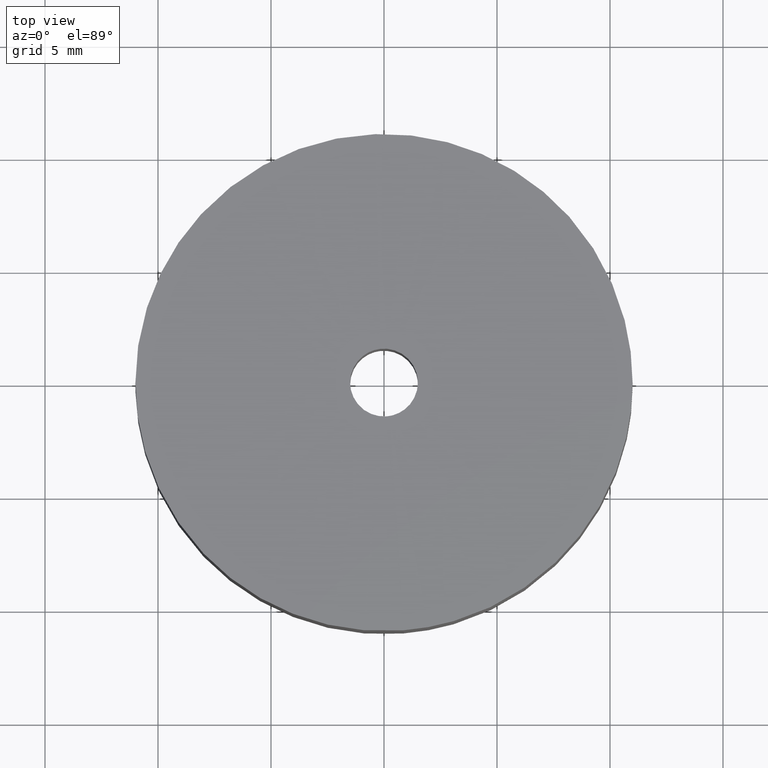
[diagram: clean part render]
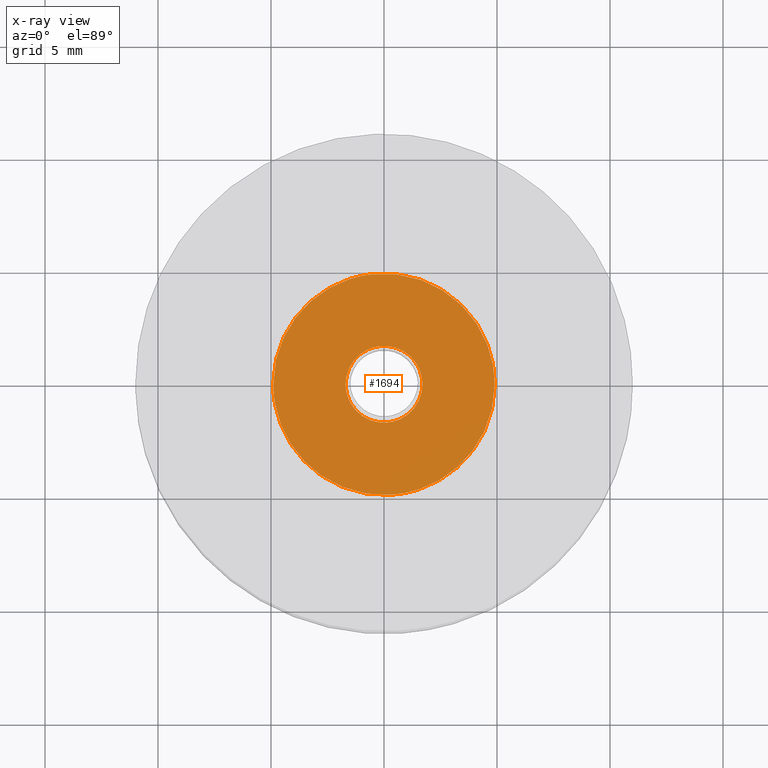
[diagram: x-ray — body ghosted, one internal face saturated and labeled with its STEP entity id]
A machine part, top view, then the same camera in x-ray: the body is ghosted and one INTERNAL B-rep face — a face not visible from any outside direction — is saturated and labeled: STEP entity #1694.
In plain terms, the highlighted face is a freeform B-spline surface patch.
Its self-contained STEP definition (entity closure, byte-faithful):
#1138=CARTESIAN_POINT('',(-0.200658198949654,1.688116194814291,4.299999999999999));
#1139=VERTEX_POINT('',#1138);
#1145=CARTESIAN_POINT('',(1.700000000000000,0.0,4.300000000000000));
#1146=VERTEX_POINT('',#1145);
#1147=CARTESIAN_POINT('',(-0.200658198949654,1.688116194814290,4.299999999999999));
#1148=CARTESIAN_POINT('',(-0.100681003441763,1.700000000000000,4.300000000000000));
#1149=CARTESIAN_POINT('',(0.0,1.700000000000000,4.300000000000000));
#1150=CARTESIAN_POINT('',(1.700000000000000,1.700000000000000,4.300000000000001));
#1151=CARTESIAN_POINT('',(1.700000000000000,0.0,4.300000000000000));
#1159=(BOUNDED_CURVE()B_SPLINE_CURVE(2,(#1147,#1148,#1149,#1150,#1151),.UNSPECIFIED.,.F.,.U.)B_SPLINE_CURVE_WITH_KNOTS((3,2,3),(0.229562473509004,0.250000000000000,0.500000000000000),.UNSPECIFIED.)CURVE()GEOMETRIC_REPRESENTATION_ITEM()RATIONAL_B_SPLINE_CURVE((0.956026754174870,0.976055948325868,1.0,0.707106781186548,1.0))REPRESENTATION_ITEM(''));
#1160=EDGE_CURVE('',#1139,#1146,#1159,.T.);
#1162=CARTESIAN_POINT('',(0.103782517247881,-1.696829157314811,4.300000000000000));
#1163=VERTEX_POINT('',#1162);
#1164=CARTESIAN_POINT('',(1.700000000000000,0.0,4.300000000000000));
#1165=CARTESIAN_POINT('',(1.700000000000000,-1.599200313666744,4.300000000000000));
#1166=CARTESIAN_POINT('',(0.103782517247880,-1.696829157314812,4.300000000000000));
#1174=(BOUNDED_CURVE()B_SPLINE_CURVE(2,(#1164,#1165,#1166),.UNSPECIFIED.,.F.,.U.)B_SPLINE_CURVE_WITH_KNOTS((3,3),(0.500000000000000,0.739332962234113),.UNSPECIFIED.)CURVE()GEOMETRIC_REPRESENTATION_ITEM()RATIONAL_B_SPLINE_CURVE((1.0,0.719603993292368,0.976072041656367))REPRESENTATION_ITEM(''));
#1175=EDGE_CURVE('',#1146,#1163,#1174,.T.);
#1249=CARTESIAN_POINT('',(-1.700000000000000,0.0,4.300000000000000));
#1250=VERTEX_POINT('',#1249);
#1251=CARTESIAN_POINT('',(0.103782517247881,-1.696829157314811,4.300000000000000));
#1252=CARTESIAN_POINT('',(0.051939697646333,-1.700000000000000,4.300000000000000));
#1253=CARTESIAN_POINT('',(0.0,-1.700000000000000,4.300000000000000));
#1254=CARTESIAN_POINT('',(-1.700000000000000,-1.700000000000000,4.300000000000001));
#1255=CARTESIAN_POINT('',(-1.700000000000000,0.0,4.300000000000000));
#1263=(BOUNDED_CURVE()B_SPLINE_CURVE(2,(#1251,#1252,#1253,#1254,#1255),.UNSPECIFIED.,.F.,.U.)B_SPLINE_CURVE_WITH_KNOTS((3,2,3),(0.739332962234113,0.750000000000000,1.0),.UNSPECIFIED.)CURVE()GEOMETRIC_REPRESENTATION_ITEM()RATIONAL_B_SPLINE_CURVE((0.976072041656367,0.987502787894179,1.0,0.707106781186548,1.0))REPRESENTATION_ITEM(''));
#1264=EDGE_CURVE('',#1163,#1250,#1263,.T.);
#1266=CARTESIAN_POINT('',(-1.700000000000000,0.0,4.300000000000000));
#1267=CARTESIAN_POINT('',(-1.700000000000000,1.509896694057580,4.300000000000000));
#1268=CARTESIAN_POINT('',(-0.200658198949654,1.688116194814291,4.299999999999999));
#1276=(BOUNDED_CURVE()B_SPLINE_CURVE(2,(#1266,#1267,#1268),.UNSPECIFIED.,.F.,.U.)B_SPLINE_CURVE_WITH_KNOTS((3,3),(0.0,0.229562473509004),.UNSPECIFIED.)CURVE()GEOMETRIC_REPRESENTATION_ITEM()RATIONAL_B_SPLINE_CURVE((1.0,0.731050832860680,0.956026754174870))REPRESENTATION_ITEM(''));
#1277=EDGE_CURVE('',#1250,#1139,#1276,.T.);
#1309=CARTESIAN_POINT('',(-0.578361964243906,4.865747366878184,4.299999999999754));
#1310=VERTEX_POINT('',#1309);
#1311=CARTESIAN_POINT('',(4.900000000000000,0.0,4.300000000000000));
#1312=VERTEX_POINT('',#1311);
#1313=CARTESIAN_POINT('',(-0.578361964243906,4.865747366878184,4.299999999999754));
#1314=CARTESIAN_POINT('',(-0.290195262925594,4.899999999999999,4.300000000000000));
#1315=CARTESIAN_POINT('',(0.0,4.900000000000000,4.300000000000000));
#1316=CARTESIAN_POINT('',(4.899999999999999,4.899999999999999,4.300000000000000));
#1317=CARTESIAN_POINT('',(4.900000000000000,0.0,4.300000000000000));
#1325=(BOUNDED_CURVE()B_SPLINE_CURVE(2,(#1313,#1314,#1315,#1316,#1317),.UNSPECIFIED.,.F.,.U.)B_SPLINE_CURVE_WITH_KNOTS((3,2,3),(0.229562674467517,0.250000000000000,0.500000000000000),.UNSPECIFIED.)CURVE()GEOMETRIC_REPRESENTATION_ITEM()RATIONAL_B_SPLINE_CURVE((0.956027148062159,0.976056183763411,1.0,0.707106781186547,1.0))REPRESENTATION_ITEM(''));
#1326=EDGE_CURVE('',#1310,#1312,#1325,.T.);
#1367=CARTESIAN_POINT('',(0.299129869435250,-4.890860999982295,4.299999999999896));
#1368=VERTEX_POINT('',#1367);
#1374=CARTESIAN_POINT('',(4.900000000000000,0.0,4.300000000000000));
#1375=CARTESIAN_POINT('',(4.900000000000000,-4.609467257363676,4.300000000000000));
#1376=CARTESIAN_POINT('',(0.299129869435250,-4.890860999982295,4.299999999999896));
#1384=(BOUNDED_CURVE()B_SPLINE_CURVE(2,(#1374,#1375,#1376),.UNSPECIFIED.,.F.,.U.)B_SPLINE_CURVE_WITH_KNOTS((3,3),(0.500000000000000,0.739333243570307),.UNSPECIFIED.)CURVE()GEOMETRIC_REPRESENTATION_ITEM()RATIONAL_B_SPLINE_CURVE((1.0,0.719603663686515,0.976072644614125))REPRESENTATION_ITEM(''));
#1385=EDGE_CURVE('',#1312,#1368,#1384,.T.);
#1408=CARTESIAN_POINT('',(-4.900000000000000,0.0,4.300000000000000));
#1409=VERTEX_POINT('',#1408);
#1410=CARTESIAN_POINT('',(-4.900000000000000,0.0,4.300000000000000));
#1411=CARTESIAN_POINT('',(-4.899999999999999,4.352060388366241,4.300000000000000));
#1412=CARTESIAN_POINT('',(-0.578361964243906,4.865747366878184,4.299999999999754));
#1420=(BOUNDED_CURVE()B_SPLINE_CURVE(2,(#1410,#1411,#1412),.UNSPECIFIED.,.F.,.U.)B_SPLINE_CURVE_WITH_KNOTS((3,3),(0.0,0.229562674467517),.UNSPECIFIED.)CURVE()GEOMETRIC_REPRESENTATION_ITEM()RATIONAL_B_SPLINE_CURVE((1.0,0.731050597423136,0.956027148062159))REPRESENTATION_ITEM(''));
#1421=EDGE_CURVE('',#1409,#1310,#1420,.T.);
#1423=CARTESIAN_POINT('',(0.299129869435250,-4.890860999982295,4.299999999999896));
#1424=CARTESIAN_POINT('',(0.149704541841249,-4.900000000000000,4.300000000000000));
#1425=CARTESIAN_POINT('',(0.0,-4.900000000000000,4.300000000000000));
#1426=CARTESIAN_POINT('',(-4.899999999999999,-4.899999999999999,4.300000000000000));
#1427=CARTESIAN_POINT('',(-4.900000000000000,0.0,4.300000000000000));
#1435=(BOUNDED_CURVE()B_SPLINE_CURVE(2,(#1423,#1424,#1425,#1426,#1427),.UNSPECIFIED.,.F.,.U.)B_SPLINE_CURVE_WITH_KNOTS((3,2,3),(0.739333243570307,0.750000000000000,1.0),.UNSPECIFIED.)CURVE()GEOMETRIC_REPRESENTATION_ITEM()RATIONAL_B_SPLINE_CURVE((0.976072644614125,0.987503117500032,1.0,0.707106781186547,1.0))REPRESENTATION_ITEM(''));
#1436=EDGE_CURVE('',#1368,#1409,#1435,.T.);
#1677=CARTESIAN_POINT('',(-5.389510073001086,-5.389390995347224,4.300000000000000));
#1678=CARTESIAN_POINT('',(5.389510248238743,-5.389390995347224,4.300000000000000));
#1679=CARTESIAN_POINT('',(-5.389510073001086,5.389420873367511,4.300000000000000));
#1680=CARTESIAN_POINT('',(5.389510248238743,5.389420873367511,4.300000000000000));
#1681=B_SPLINE_SURFACE_WITH_KNOTS('',1,1,((#1677,#1679),(#1678,#1680)),.UNSPECIFIED.,.F.,.F.,.U.,(2,2),(2,2),(0.0,10.779020321239830),(0.0,10.778811868714740),.UNSPECIFIED.);
#1682=ORIENTED_EDGE('',*,*,#1421,.T.);
#1683=ORIENTED_EDGE('',*,*,#1326,.T.);
#1684=ORIENTED_EDGE('',*,*,#1385,.T.);
#1685=ORIENTED_EDGE('',*,*,#1436,.T.);
#1686=EDGE_LOOP('',(#1682,#1683,#1684,#1685));
#1687=FACE_OUTER_BOUND('',#1686,.T.);
#1688=ORIENTED_EDGE('',*,*,#1175,.F.);
#1689=ORIENTED_EDGE('',*,*,#1160,.F.);
#1690=ORIENTED_EDGE('',*,*,#1277,.F.);
#1691=ORIENTED_EDGE('',*,*,#1264,.F.);
#1692=EDGE_LOOP('',(#1688,#1689,#1690,#1691));
#1693=FACE_BOUND('',#1692,.T.);
#1694=ADVANCED_FACE('',(#1687,#1693),#1681,.F.);